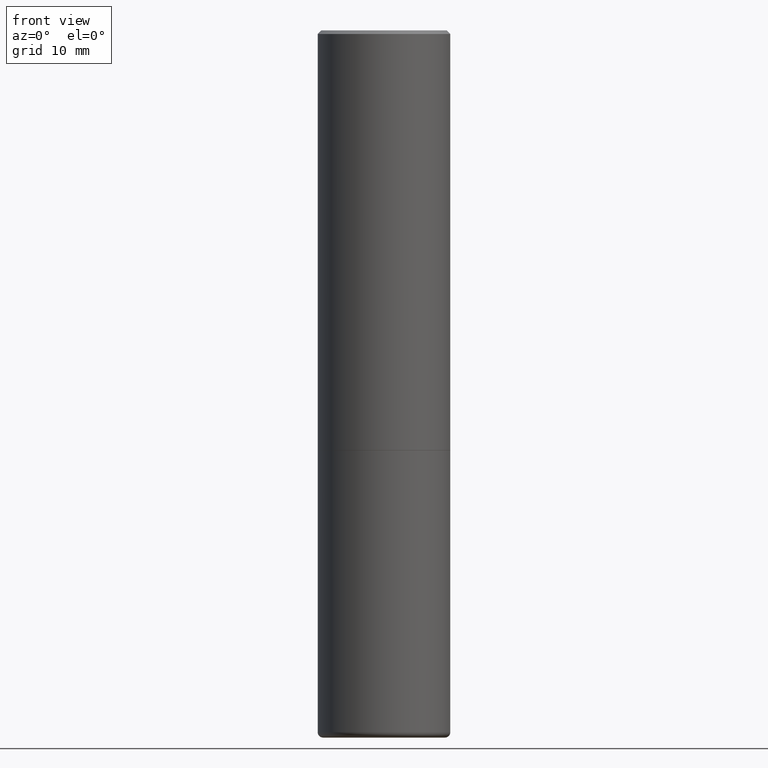
[diagram: clean part render]
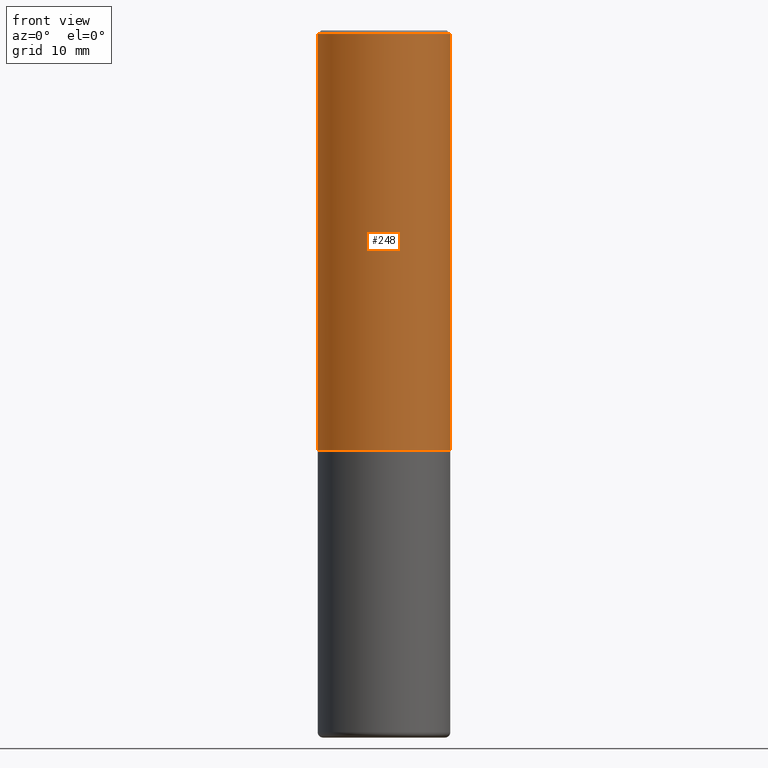
[diagram: same view with one face highlighted and labeled with its STEP entity id]
A machine part, front view. The second image highlights one B-rep face of the part: STEP entity #248.
In plain terms, the highlighted cylindrical surface (partial cylindrical patch) has radius 9.525 mm, axis along (-0, 0, 1).
Its self-contained STEP definition (entity closure, byte-faithful):
#2 = CARTESIAN_POINT ( 'NONE',  ( 5.805542945883513814E-29, -8.288776698413627111E-15, -2.373999999999999666 ) ) ;
#5 = EDGE_CURVE ( 'NONE', #259, #17, #77, .T. ) ;
#10 = VECTOR ( 'NONE', #208, 39.37007874015748143 ) ;
#17 = VERTEX_POINT ( 'NONE', #230 ) ;
#18 = CARTESIAN_POINT ( 'NONE',  ( 0.000000000000000000, 0.000000000000000000, 0.000000000000000000 ) ) ;
#21 = DIRECTION ( 'NONE',  ( 1.000000000000000000, -6.982962677686266711E-15, 4.876176775795936353E-29 ) ) ;
#56 = CARTESIAN_POINT ( 'NONE',  ( -0.3749999999999993894, 2.664535259100371358E-15, -1.844600658845586515E-29 ) ) ;
#61 = FACE_OUTER_BOUND ( 'NONE', #253, .T. ) ;
#77 = CIRCLE ( 'NONE', #342, 0.3749999999999996114 ) ;
#82 = EDGE_CURVE ( 'NONE', #166, #440, #443, .T. ) ;
#83 = CARTESIAN_POINT ( 'NONE',  ( -0.3749999999999992784, 2.548781377355481985E-15, -0.02000000000000016695 ) ) ;
#93 = CARTESIAN_POINT ( 'NONE',  ( -0.3749999999999995559, -1.514767903494871085E-15, -2.373999999999999666 ) ) ;
#96 = ORIENTED_EDGE ( 'NONE', *, *, #82, .F. ) ;
#107 = DIRECTION ( 'NONE',  ( 1.000000000000000000, -6.982962677686267499E-15, 0.000000000000000000 ) ) ;
#142 = DIRECTION ( 'NONE',  ( 1.000000000000000000, -6.982962677686264344E-15, 0.000000000000000000 ) ) ;
#157 = ORIENTED_EDGE ( 'NONE', *, *, #282, .F. ) ;
#163 = LINE ( 'NONE', #475, #177 ) ;
#166 = VERTEX_POINT ( 'NONE', #83 ) ;
#177 = VECTOR ( 'NONE', #401, 39.37007874015748143 ) ;
#193 = CARTESIAN_POINT ( 'NONE',  ( 0.3749999999999992784, -2.642516375941182506E-15, -0.02000000000000016695 ) ) ;
#208 = DIRECTION ( 'NONE',  ( -2.445468806185136877E-29, 3.491481338843145188E-15, 1.000000000000000000 ) ) ;
#230 = CARTESIAN_POINT ( 'NONE',  ( 0.3749999999999996114, -1.090738770254597397E-14, -2.373999999999999666 ) ) ;
#245 = DIRECTION ( 'NONE',  ( -2.445468806185136597E-29, 3.491481338843145583E-15, 1.000000000000000000 ) ) ;
#248 = ADVANCED_FACE ( 'NONE', ( #61 ), #252, .T. ) ;
#252 = CYLINDRICAL_SURFACE ( 'NONE', #285, 0.3749999999999993894 ) ;
#253 = EDGE_LOOP ( 'NONE', ( #157, #366, #256, #96 ) ) ;
#256 = ORIENTED_EDGE ( 'NONE', *, *, #304, .T. ) ;
#259 = VERTEX_POINT ( 'NONE', #93 ) ;
#264 = DIRECTION ( 'NONE',  ( -2.445468806185136597E-29, 3.491481338843145583E-15, 1.000000000000000000 ) ) ;
#282 = EDGE_CURVE ( 'NONE', #259, #166, #397, .T. ) ;
#285 = AXIS2_PLACEMENT_3D ( 'NONE', #18, #245, #21 ) ;
#304 = EDGE_CURVE ( 'NONE', #17, #440, #163, .T. ) ;
#306 = CARTESIAN_POINT ( 'NONE',  ( 4.890937612370313446E-31, -6.982962677686349541E-17, -0.02000000000000016695 ) ) ;
#342 = AXIS2_PLACEMENT_3D ( 'NONE', #2, #264, #142 ) ;
#366 = ORIENTED_EDGE ( 'NONE', *, *, #5, .T. ) ;
#397 = LINE ( 'NONE', #56, #10 ) ;
#401 = DIRECTION ( 'NONE',  ( -2.445468806185136877E-29, 3.491481338843145188E-15, 1.000000000000000000 ) ) ;
#420 = AXIS2_PLACEMENT_3D ( 'NONE', #306, #421, #107 ) ;
#421 = DIRECTION ( 'NONE',  ( -2.445468806185136597E-29, 3.491481338843145583E-15, 1.000000000000000000 ) ) ;
#440 = VERTEX_POINT ( 'NONE', #193 ) ;
#443 = CIRCLE ( 'NONE', #420, 0.3749999999999992784 ) ;
#475 = CARTESIAN_POINT ( 'NONE',  ( 0.3749999999999993894, -2.618611004132345678E-15, 1.828566290923473120E-29 ) ) ;